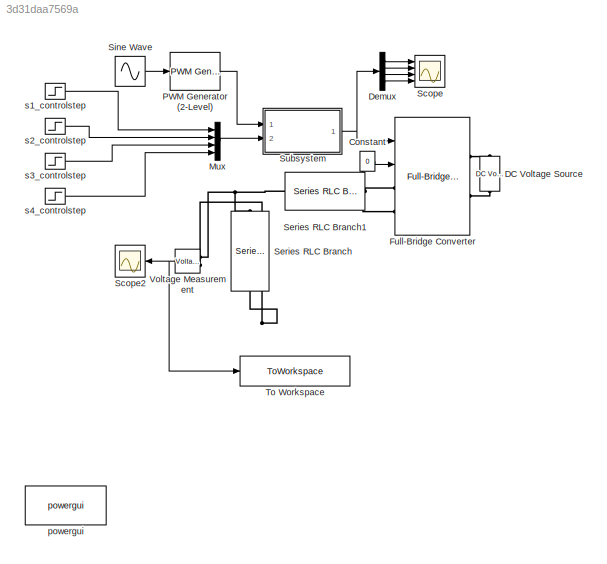
MODEL slx_3d31daa7569a
KIND model
CONFIG AbsTol = auto
CONFIG EnableMultiTasking = off
CONFIG FixedStep = auto
CONFIG MaxStep = auto
CONFIG MinStep = auto
CONFIG RelTol = 1e-3
CONFIG SampleTimeConstraint = Unconstrained
CONFIG Solver = VariableStepAuto
CONFIG SolverName = VariableStepAuto
CONFIG StartTime = 0.0
CONFIG StopTime = 0.05
BLOCK [Constant] Constant
  Value = 0
BLOCK [Reference] DC Voltage Source  REF=powerlib/Electrical
Sources/DC Voltage Source
  Ports = [0, 0, 0, 0, 0, 1, 1]
  SourceBlock = powerlib/Electrical\nSources/DC Voltage Source
  SourceProductBaseCode = PS
  SourceProductName = Simscape Electrical
  SourceType = DC Voltage Source
BLOCK [Demux] Demux
  DisplayOption = bar
  Ports = [1, 4]
BLOCK [Reference] Full-Bridge Converter  REF=powerlib/Power
Electronics/Full-Bridge Converter
  Ports = [2, 0, 0, 0, 0, 2, 2]
  SourceBlock = powerlib/Power\nElectronics/Full-Bridge Converter
  SourceProductBaseCode = PS
  SourceProductName = Simscape Electrical
  SourceType = Full-Bridge Converter
BLOCK [Mux] Mux
  DisplayOption = bar
  Ports = [4, 1]
BLOCK [Reference] PWM Generator (2-Level)  REF=powerlib_meascontrol/Pulse & Signal
Generators/PWM Generator
(2-Level)
  Ports = [1, 1]
  SourceBlock = powerlib_meascontrol/Pulse & Signal\nGenerators/PWM Generator\n(2-Level)
  SourceProductBaseCode = PS
  SourceProductName = Simscape Electrical
  SourceType = PWM Generator (2-Level)
BLOCK [Scope] Scope
  Floating = off
  NumInputPorts = 4
  Ports = [4]
  ScopeSpecificationString = Simulink.scopes.TimeScopeBlockCfg('CurrentConfiguration', extmgr.ConfigurationSet(extmgr.Configuration('Core','General UI',true),extmgr.Configuration('Core','Source UI',true),extmgr.Configuration('Sources','WiredSimulink',true),extmgr.Configuration('Visuals','Time Domain',true,'SerializedDisplays',{struct('MinYLimReal','-0.125','MaxYLimReal','1.125','YLabelReal','','MinYLimMag','0.00000','MaxYLimM...<+3365ch>
BLOCK [Scope] Scope2
  Floating = off
  NumInputPorts = 1
  Ports = [1]
  ScopeSpecificationString = Simulink.scopes.TimeScopeBlockCfg('CurrentConfiguration', extmgr.ConfigurationSet(extmgr.Configuration('Core','General UI',true),extmgr.Configuration('Core','Source UI',true),extmgr.Configuration('Sources','WiredSimulink',true,'DataLoggingVariableName','ScopeData2'),extmgr.Configuration('Visuals','Time Domain',true,'SerializedDisplays',{struct('MinYLimReal','-12.33754','MaxYLimReal','12.33755','YL...<+1481ch>
BLOCK [Reference] Series RLC Branch  REF=powerlib/Elements/Series RLC Branch
  Ports = [0, 0, 0, 0, 0, 1, 1]
  SourceBlock = powerlib/Elements/Series RLC Branch
  SourceProductBaseCode = PS
  SourceProductName = Simscape Electrical
  SourceType = Series RLC Branch
BLOCK [Reference] Series RLC Branch1  REF=powerlib/Elements/Series RLC Branch
  Ports = [0, 0, 0, 0, 0, 1, 1]
  SourceBlock = powerlib/Elements/Series RLC Branch
  SourceProductBaseCode = PS
  SourceProductName = Simscape Electrical
  SourceType = Series RLC Branch
BLOCK [Sin] Sine Wave
  Frequency = 377
  Ports = [0, 1]
  SampleTime = 0
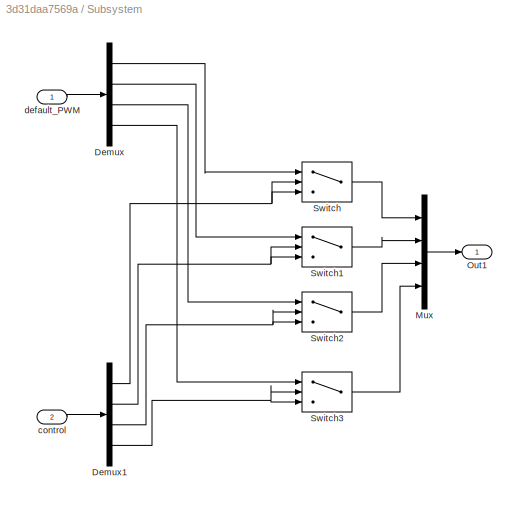
BLOCK [SubSystem] Subsystem
  Ports = [2, 1]
  RequestExecContextInheritance = off
BLOCK [Demux] Subsystem/Demux
  DisplayOption = bar
  Ports = [1, 4]
BLOCK [Demux] Subsystem/Demux1
  DisplayOption = bar
  Ports = [1, 4]
BLOCK [Mux] Subsystem/Mux
  DisplayOption = bar
  Ports = [4, 1]
BLOCK [Outport] Subsystem/Out1
  IconDisplay = Port number
  VectorParamsAs1DForOutWhenUnconnected = off
BLOCK [Switch] Subsystem/Switch
  Criteria = u2 > Threshold
  InputSameDT = off
  SaturateOnIntegerOverflow = off
  Threshold = 1
BLOCK [Switch] Subsystem/Switch1
  Criteria = u2 > Threshold
  InputSameDT = off
  SaturateOnIntegerOverflow = off
  Threshold = 1
BLOCK [Switch] Subsystem/Switch2
  Criteria = u2 > Threshold
  InputSameDT = off
  SaturateOnIntegerOverflow = off
  Threshold = 1
BLOCK [Switch] Subsystem/Switch3
  Criteria = u2 > Threshold
  InputSameDT = off
  SaturateOnIntegerOverflow = off
  Threshold = 1
BLOCK [Inport] Subsystem/control
  IconDisplay = Port number
  Port = 2
BLOCK [Inport] Subsystem/default_PWM
  IconDisplay = Port number
BLOCK [ToWorkspace] To Workspace
  FixptAsFi = on
  Ports = [1]
  SampleTime = -1
  SaveFormat = Timeseries
  VariableName = voltage_measured
BLOCK [Reference] Voltage Measurement  REF=powerlib/Measurements/Voltage Measurement
  Ports = [0, 1, 0, 0, 0, 2]
  SourceBlock = powerlib/Measurements/Voltage Measurement
  SourceProductBaseCode = PS
  SourceProductName = Simscape Electrical
  SourceType = Voltage Measurement
  UserDataPersistent = on
BLOCK [Reference] powergui  REF=powerlib/powergui
  Ports = []
  Priority = 1
  SourceBlock = powerlib/powergui
  SourceProductBaseCode = PS
  SourceProductName = Simscape Electrical
  SourceType = PSB option menu block
BLOCK [Step] s1_controlstep
  After = s1_set
  Before = 2
  SampleTime = 0
  Time = FT
BLOCK [Step] s2_controlstep
  After = s2_set
  Before = 2
  SampleTime = 0
  Time = FT
BLOCK [Step] s3_controlstep
  After = s3_set
  Before = 2
  SampleTime = 0
  Time = FT
BLOCK [Step] s4_controlstep
  After = s4_set
  Before = 2
  SampleTime = 0
  Time = FT
LINE Constant:1 -> Full-Bridge Converter:2
LINE Demux:1 -> Scope:1
LINE Demux:2 -> Scope:2
LINE Demux:3 -> Scope:3
LINE Demux:4 -> Scope:4
LINE Mux:1 -> Subsystem:2
LINE PWM Generator (2-Level):1 -> Subsystem:1
LINE Sine Wave:1 -> PWM Generator (2-Level):1
NET Subsystem/Demux1:1 -> Subsystem/Switch:2, Subsystem/Switch:3
NET Subsystem/Demux1:2 -> Subsystem/Switch1:2, Subsystem/Switch1:3
NET Subsystem/Demux1:3 -> Subsystem/Switch2:2, Subsystem/Switch2:3
NET Subsystem/Demux1:4 -> Subsystem/Switch3:2, Subsystem/Switch3:3
LINE Subsystem/Demux:1 -> Subsystem/Switch:1
LINE Subsystem/Demux:2 -> Subsystem/Switch1:1
LINE Subsystem/Demux:3 -> Subsystem/Switch2:1
LINE Subsystem/Demux:4 -> Subsystem/Switch3:1
LINE Subsystem/Mux:1 -> Subsystem/Out1:1
LINE Subsystem/Switch1:1 -> Subsystem/Mux:2
LINE Subsystem/Switch2:1 -> Subsystem/Mux:3
LINE Subsystem/Switch3:1 -> Subsystem/Mux:4
LINE Subsystem/Switch:1 -> Subsystem/Mux:1
LINE Subsystem/control:1 -> Subsystem/Demux1:1
LINE Subsystem/default_PWM:1 -> Subsystem/Demux:1
NET Subsystem:1 -> Demux:1, Full-Bridge Converter:1
NET Voltage Measurement:1 -> Scope2:1, To Workspace:1
LINE s1_controlstep:1 -> Mux:1
LINE s2_controlstep:1 -> Mux:2
LINE s3_controlstep:1 -> Mux:3
LINE s4_controlstep:1 -> Mux:4
PLINE DC Voltage Source:LConn1 -- Full-Bridge Converter:RConn2
PLINE DC Voltage Source:RConn1 -- Full-Bridge Converter:RConn1
PLINE Full-Bridge Converter:LConn1 -- Series RLC Branch1:RConn1
PNET net1: Full-Bridge Converter:LConn2 -- Series RLC Branch:RConn1 -- Voltage Measurement:LConn2
PNET net2: Series RLC Branch1:LConn1 -- Series RLC Branch:LConn1 -- Voltage Measurement:LConn1
note: NET lines group one-source signal fan-out (src -> all destinations, sorted); 1:1 wires keep LINE; PNET lines group multi-terminal physical nets as a canonical sorted terminal list (undirected conserving connections); 2-terminal nets keep the pairwise PLINE form
